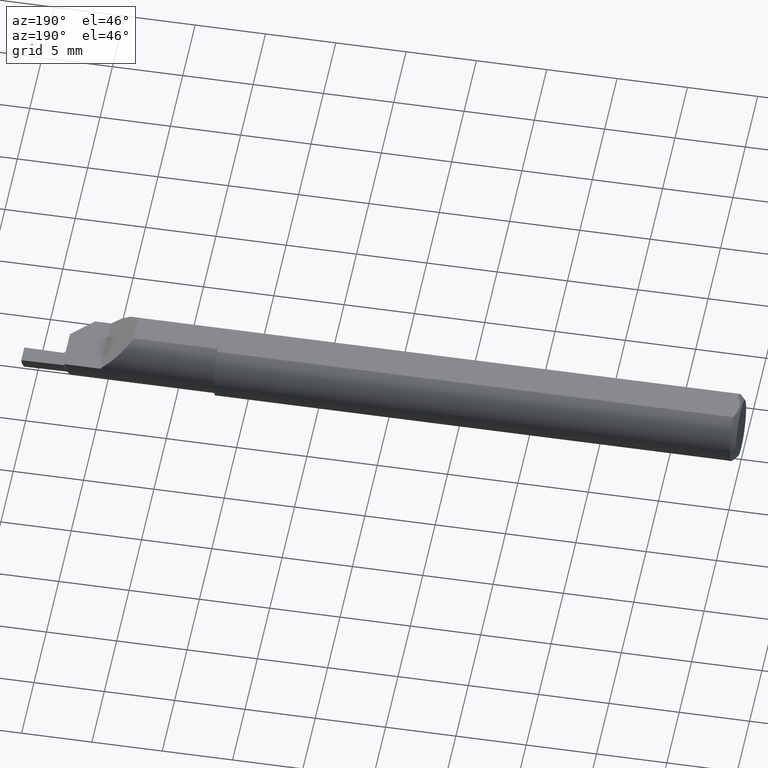
[diagram: clean part render]
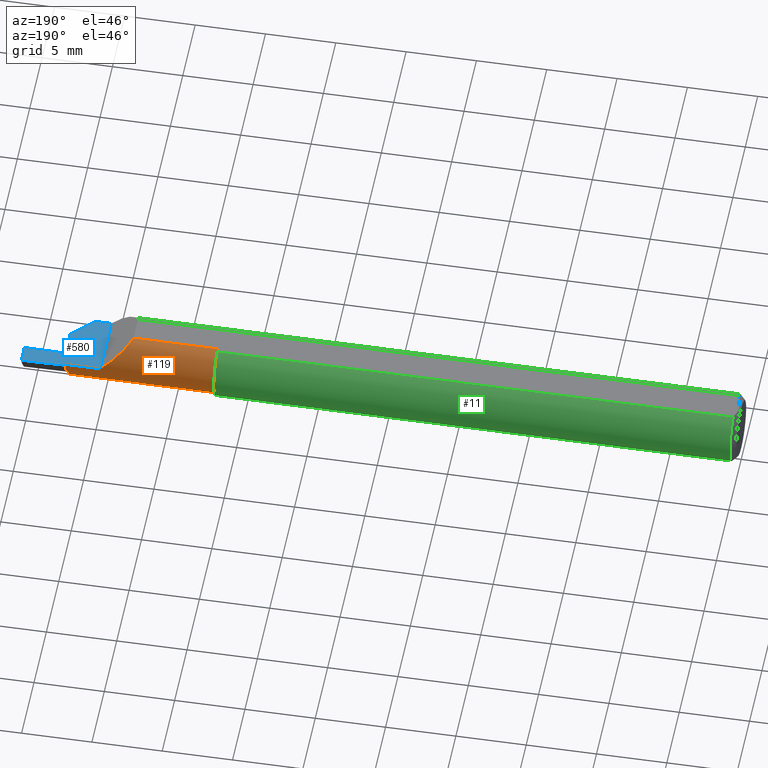
[diagram: same view with three faces highlighted in distinct colors, each labeled with its STEP entity id]
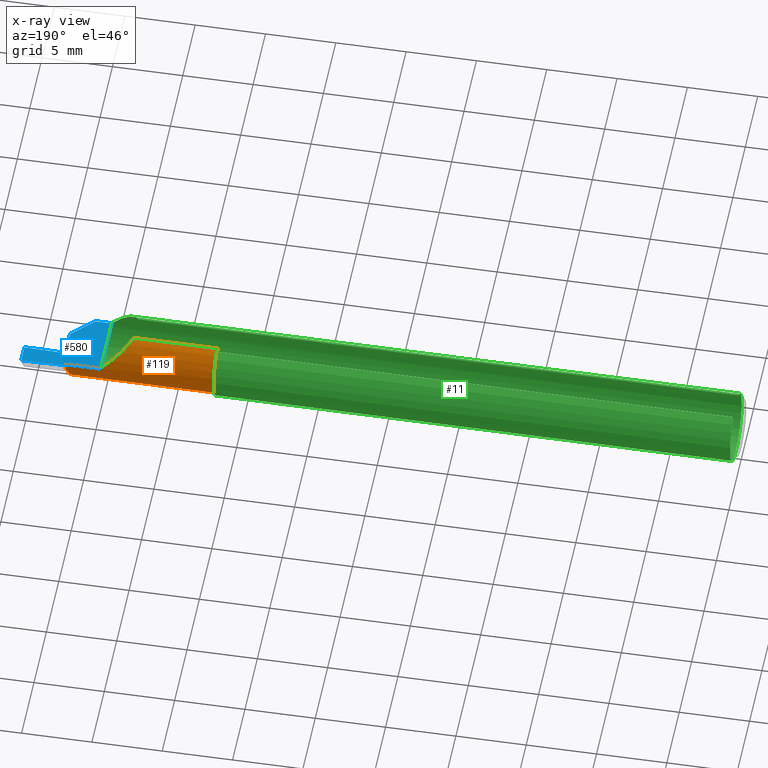
[diagram: x-ray of the same camera — body ghosted, the three highlighted faces saturated]
A machine part, auxiliary view with three faces highlighted in distinct colors.
The next image is the same camera in x-ray (body ghosted, the three faces saturated) — at least one of them is partly hidden behind the body in this view.
Their STEP definitions:

[orange] entity #119 — the highlighted cylindrical surface (edge-blend (fillet) strip) has radius 2.3749 mm, axis along (-1, -0, -0).
#15 = CIRCLE ( 'NONE', #449, 0.09349999999999999978 ) ;
#36 = ORIENTED_EDGE ( 'NONE', *, *, #242, .T. ) ;
#44 = EDGE_CURVE ( 'NONE', #395, #562, #765, .T. ) ;
#51 = CARTESIAN_POINT ( 'NONE',  ( 1.871630249067014473, 0.07571437546737692925, -0.03530500970831557117 ) ) ;
#66 = B_SPLINE_CURVE_WITH_KNOTS ( 'NONE', 3,
 ( #452, #634, #261, #435 ),
 .UNSPECIFIED., .F., .F.,
 ( 4, 4 ),
 ( 1.084202172485504434E-19, 4.492630260420551070E-05 ),
 .UNSPECIFIED. ) ;
#89 = LINE ( 'NONE', #287, #274 ) ;
#92 = VERTEX_POINT ( 'NONE', #542 ) ;
#93 = CARTESIAN_POINT ( 'NONE',  ( 1.870462673150747879, 0.06595898013322305797, -0.05324312250910651079 ) ) ;
#106 = DIRECTION ( 'NONE',  ( 0.000000000000000000, 0.000000000000000000, 1.000000000000000000 ) ) ;
#119 = ADVANCED_FACE ( 'NONE', ( #245 ), #194, .T. ) ;
#125 = CARTESIAN_POINT ( 'NONE',  ( 1.873500086923522323, 0.07823289136696819079, -0.02824476859656738573 ) ) ;
#129 = VERTEX_POINT ( 'NONE', #683 ) ;
#138 = CARTESIAN_POINT ( 'NONE',  ( 1.871724108065524694, -0.006308577734127043118, -0.09338716103925931433 ) ) ;
#142 = CIRCLE ( 'NONE', #386, 0.09350000000000002753 ) ;
#144 = EDGE_CURVE ( 'NONE', #129, #717, #142, .T. ) ;
#151 = VERTEX_POINT ( 'NONE', #572 ) ;
#170 = CARTESIAN_POINT ( 'NONE',  ( 1.660946387129862867, 0.08259923835978047468, 0.000000000000000000 ) ) ;
#174 = DIRECTION ( 'NONE',  ( 1.000000000000000000, 0.000000000000000000, 0.000000000000000000 ) ) ;
#182 = CARTESIAN_POINT ( 'NONE',  ( 1.870462673150747879, 0.06595898013322305797, -0.05324312250910651079 ) ) ;
#184 = CARTESIAN_POINT ( 'NONE',  ( 1.695999999999999286, 0.03097154424326387101, 0.08360000000000000764 ) ) ;
#185 = CARTESIAN_POINT ( 'NONE',  ( 1.875240176068755815, 0.07874946376246647062, -0.02655347595414943307 ) ) ;
#189 = CARTESIAN_POINT ( 'NONE',  ( 1.872373559742896321, 0.07704879319694681039, -0.03176034832322011808 ) ) ;
#190 = EDGE_CURVE ( 'NONE', #395, #717, #66, .T. ) ;
#194 = CYLINDRICAL_SURFACE ( 'NONE', #286, 0.09349999999999999978 ) ;
#196 = VECTOR ( 'NONE', #321, 39.37007874015748143 ) ;
#206 = DIRECTION ( 'NONE',  ( -1.000000000000000000, -0.000000000000000000, -0.000000000000000000 ) ) ;
#217 = VERTEX_POINT ( 'NONE', #138 ) ;
#239 = CARTESIAN_POINT ( 'NONE',  ( 1.874146761554601692, 0.07856775369816737520, -0.02716045060236167014 ) ) ;
#242 = EDGE_CURVE ( 'NONE', #671, #151, #380, .T. ) ;
#245 = FACE_OUTER_BOUND ( 'NONE', #308, .T. ) ;
#261 = CARTESIAN_POINT ( 'NONE',  ( 1.876413382923763251, 0.07871577950490736553, -0.02666700288578795208 ) ) ;
#268 = DIRECTION ( 'NONE',  ( -1.000000000000000000, -0.000000000000000000, -0.000000000000000000 ) ) ;
#274 = VECTOR ( 'NONE', #766, 39.37007874015748143 ) ;
#286 = AXIS2_PLACEMENT_3D ( 'NONE', #510, #268, #622 ) ;
#287 = CARTESIAN_POINT ( 'NONE',  ( 1.668499999999999872, -0.006308577734120256013, -0.09338716103925938372 ) ) ;
#308 = EDGE_LOOP ( 'NONE', ( #36, #687, #445, #538, #793, #701, #507, #641, #341 ) ) ;
#321 = DIRECTION ( 'NONE',  ( 1.000000000000000000, 0.000000000000000000, 0.000000000000000000 ) ) ;
#333 = CARTESIAN_POINT ( 'NONE',  ( 1.877000000000000002, -0.01090076164021952856, 0.000000000000000000 ) ) ;
#341 = ORIENTED_EDGE ( 'NONE', *, *, #712, .F. ) ;
#346 = EDGE_CURVE ( 'NONE', #217, #635, #89, .T. ) ;
#347 = CARTESIAN_POINT ( 'NONE',  ( 1.459999999999999964, -0.01090076164021952856, 0.000000000000000000 ) ) ;
#370 = CARTESIAN_POINT ( 'NONE',  ( 1.870578679361300622, 0.07143827578441207249, -0.04459544756415650263 ) ) ;
#380 = LINE ( 'NONE', #624, #196 ) ;
#386 = AXIS2_PLACEMENT_3D ( 'NONE', #333, #206, #569 ) ;
#395 = VERTEX_POINT ( 'NONE', #521 ) ;
#407 =( BOUNDED_CURVE ( )  B_SPLINE_CURVE ( 3, ( #93, #560, #761, #460 ),
 .UNSPECIFIED., .F., .F. ) 
 B_SPLINE_CURVE_WITH_KNOTS ( ( 4, 4 ),
 ( 0.6058307341752490194, 1.521662293291339285 ),
 .UNSPECIFIED. ) 
 CURVE ( )  GEOMETRIC_REPRESENTATION_ITEM ( )  RATIONAL_B_SPLINE_CURVE ( ( 1.000000000000000000, 0.9313172242408496171, 0.9313172242408496171, 1.000000000000000000 ) ) 
 REPRESENTATION_ITEM ( '' )  );
#417 = CARTESIAN_POINT ( 'NONE',  ( 1.873968698813473832, 0.07848625198081335408, -0.02742796125823298084 ) ) ;
#431 = CARTESIAN_POINT ( 'NONE',  ( 1.874913749179887512, 0.07875882808791800915, -0.02652185998459062263 ) ) ;
#435 = CARTESIAN_POINT ( 'NONE',  ( 1.877000000000000002, 0.07869889535216138821, -0.02672361253363190678 ) ) ;
#445 = ORIENTED_EDGE ( 'NONE', *, *, #556, .T. ) ;
#449 = AXIS2_PLACEMENT_3D ( 'NONE', #347, #589, #106 ) ;
#452 = CARTESIAN_POINT ( 'NONE',  ( 1.875240176068755815, 0.07874946376246647062, -0.02655347595414943307 ) ) ;
#460 = CARTESIAN_POINT ( 'NONE',  ( 1.871724108065524694, -0.006308577734127043118, -0.09338716103925931433 ) ) ;
#495 = CARTESIAN_POINT ( 'NONE',  ( 1.874602378891650378, 0.07870325883851046755, -0.02671001362459104328 ) ) ;
#507 = ORIENTED_EDGE ( 'NONE', *, *, #558, .T. ) ;
#510 = CARTESIAN_POINT ( 'NONE',  ( 1.660946387129862867, -0.01090076164021952856, 0.000000000000000000 ) ) ;
#511 =( BOUNDED_CURVE ( )  B_SPLINE_CURVE ( 3, ( #800, #664, #737, #184 ),
 .UNSPECIFIED., .F., .T. ) 
 B_SPLINE_CURVE_WITH_KNOTS ( ( 4, 4 ),
 ( 4.712388980384689674, 5.818846015254569792 ),
 .UNSPECIFIED. ) 
 CURVE ( )  GEOMETRIC_REPRESENTATION_ITEM ( )  RATIONAL_B_SPLINE_CURVE ( ( 1.000000000000000000, 0.9005550513955334901, 0.9005550513955334901, 1.000000000000000000 ) ) 
 REPRESENTATION_ITEM ( '' )  );
#519 = EDGE_CURVE ( 'NONE', #92, #151, #511, .T. ) ;
#521 = CARTESIAN_POINT ( 'NONE',  ( 1.875240176068755815, 0.07874946376246647062, -0.02655347595414943307 ) ) ;
#538 = ORIENTED_EDGE ( 'NONE', *, *, #144, .T. ) ;
#542 = CARTESIAN_POINT ( 'NONE',  ( 1.779599999999998516, 0.08259923835978043305, 0.000000000000000000 ) ) ;
#554 = VECTOR ( 'NONE', #174, 39.37007874015748143 ) ;
#556 = EDGE_CURVE ( 'NONE', #92, #129, #727, .T. ) ;
#557 = CARTESIAN_POINT ( 'NONE',  ( 1.870462673150747879, 0.06595898013322305797, -0.05324312250910651079 ) ) ;
#558 = EDGE_CURVE ( 'NONE', #562, #217, #407, .T. ) ;
#560 = CARTESIAN_POINT ( 'NONE',  ( 1.870756774177017023, 0.04910994362264489710, -0.07756574925048233260 ) ) ;
#562 = VERTEX_POINT ( 'NONE', #557 ) ;
#569 = DIRECTION ( 'NONE',  ( 0.000000000000000000, 0.000000000000000000, 1.000000000000000000 ) ) ;
#572 = CARTESIAN_POINT ( 'NONE',  ( 1.695999999999999286, 0.03097154424326387101, 0.08360000000000000764 ) ) ;
#589 = DIRECTION ( 'NONE',  ( -1.000000000000000000, -0.000000000000000000, -0.000000000000000000 ) ) ;
#611 = CARTESIAN_POINT ( 'NONE',  ( 1.870412094521900270, 0.06885662783759301242, -0.04906018875517063893 ) ) ;
#622 = DIRECTION ( 'NONE',  ( 0.000000000000000000, 0.000000000000000000, 1.000000000000000000 ) ) ;
#624 = CARTESIAN_POINT ( 'NONE',  ( 1.660946387129862867, 0.03097154424326387101, 0.08360000000000000764 ) ) ;
#634 = CARTESIAN_POINT ( 'NONE',  ( 1.875826774921705242, 0.07873263579039797844, -0.02661029079419618970 ) ) ;
#635 = VERTEX_POINT ( 'NONE', #768 ) ;
#641 = ORIENTED_EDGE ( 'NONE', *, *, #346, .T. ) ;
#660 = CARTESIAN_POINT ( 'NONE',  ( 1.873272395383936750, 0.07804906452289001040, -0.02881933657939982768 ) ) ;
#664 = CARTESIAN_POINT ( 'NONE',  ( 1.743231059775836922, 0.08259923835978047468, 0.03636894022416205935 ) ) ;
#671 = VERTEX_POINT ( 'NONE', #709 ) ;
#678 = CARTESIAN_POINT ( 'NONE',  ( 1.871311898221041270, 0.07472147366469066021, -0.03765153487251439446 ) ) ;
#683 = CARTESIAN_POINT ( 'NONE',  ( 1.877000000000000002, 0.08259923835978048856, 0.000000000000000000 ) ) ;
#687 = ORIENTED_EDGE ( 'NONE', *, *, #519, .F. ) ;
#701 = ORIENTED_EDGE ( 'NONE', *, *, #44, .T. ) ;
#709 = CARTESIAN_POINT ( 'NONE',  ( 1.459999999999999964, 0.03097154424326387101, 0.08360000000000000764 ) ) ;
#712 = EDGE_CURVE ( 'NONE', #671, #635, #15, .T. ) ;
#717 = VERTEX_POINT ( 'NONE', #730 ) ;
#727 = LINE ( 'NONE', #170, #554 ) ;
#730 = CARTESIAN_POINT ( 'NONE',  ( 1.877000000000000002, 0.07869889535216138821, -0.02672361253363190678 ) ) ;
#732 = CARTESIAN_POINT ( 'NONE',  ( 1.872663740311422131, 0.07747081412839976200, -0.03056497239435548505 ) ) ;
#737 = CARTESIAN_POINT ( 'NONE',  ( 1.712287180638761397, 0.06348965550251473022, 0.06731281936123807708 ) ) ;
#761 = CARTESIAN_POINT ( 'NONE',  ( 1.871208261912862048, 0.02324422855931691442, -0.09193394284598396804 ) ) ;
#765 = B_SPLINE_CURVE_WITH_KNOTS ( 'NONE', 3,
 ( #185, #431, #495, #239, #417, #125, #660, #732, #189, #51, #678, #370, #611, #182 ),
 .UNSPECIFIED., .F., .F.,
 ( 4, 2, 2, 2, 2, 2, 4 ),
 ( 7.446325978732054336E-05, 9.944678383452174020E-05, 0.0001244303078817229370, 0.0001743973559761253307, 0.0002743314521649367317, 0.0004741996445425596422, 0.0008739360292978057883 ),
 .UNSPECIFIED. ) ;
#766 = DIRECTION ( 'NONE',  ( -1.000000000000000000, -0.000000000000000000, -0.000000000000000000 ) ) ;
#768 = CARTESIAN_POINT ( 'NONE',  ( 1.459999999999999964, -0.006308577734120247339, -0.09338716103925938372 ) ) ;
#793 = ORIENTED_EDGE ( 'NONE', *, *, #190, .F. ) ;
#800 = CARTESIAN_POINT ( 'NONE',  ( 1.779599999999998516, 0.08259923835978043305, 0.000000000000000000 ) ) ;

[blue] entity #580 — the highlighted planar face has unit normal (0, 0, -1).
#3 = CARTESIAN_POINT ( 'NONE',  ( 2.130067462402516210, 0.09086957436106303521, 0.000000000000000000 ) ) ;
#22 = DIRECTION ( 'NONE',  ( -1.000000000000000000, 0.000000000000000000, -0.000000000000000000 ) ) ;
#45 = CARTESIAN_POINT ( 'NONE',  ( 0.000000000000000000, -0.09360000000000001652, 0.000000000000000000 ) ) ;
#48 = CARTESIAN_POINT ( 'NONE',  ( 1.877000000000000002, 0.08559923835978046347, 0.000000000000000000 ) ) ;
#56 = ORIENTED_EDGE ( 'NONE', *, *, #556, .F. ) ;
#71 = CARTESIAN_POINT ( 'NONE',  ( 2.000000000000000000, -0.1936000000000000221, 0.000000000000000000 ) ) ;
#82 = VERTEX_POINT ( 'NONE', #666 ) ;
#86 = LINE ( 'NONE', #327, #525 ) ;
#92 = VERTEX_POINT ( 'NONE', #542 ) ;
#99 = CARTESIAN_POINT ( 'NONE',  ( 1.752499999999999503, -0.1660999999999994980, 0.000000000000000000 ) ) ;
#129 = VERTEX_POINT ( 'NONE', #683 ) ;
#131 = EDGE_CURVE ( 'NONE', #92, #623, #86, .T. ) ;
#134 = DIRECTION ( 'NONE',  ( 0.000000000000000000, 0.000000000000000000, -1.000000000000000000 ) ) ;
#139 = EDGE_LOOP ( 'NONE', ( #56, #148, #183, #750, #409, #743, #157, #259, #698, #653, #240 ) ) ;
#143 = DIRECTION ( 'NONE',  ( 0.000000000000000000, -1.000000000000000000, 0.000000000000000000 ) ) ;
#145 = VERTEX_POINT ( 'NONE', #387 ) ;
#148 = ORIENTED_EDGE ( 'NONE', *, *, #131, .T. ) ;
#156 = AXIS2_PLACEMENT_3D ( 'NONE', #48, #658, #353 ) ;
#157 = ORIENTED_EDGE ( 'NONE', *, *, #688, .T. ) ;
#170 = CARTESIAN_POINT ( 'NONE',  ( 1.660946387129862867, 0.08259923835978047468, 0.000000000000000000 ) ) ;
#174 = DIRECTION ( 'NONE',  ( 1.000000000000000000, 0.000000000000000000, 0.000000000000000000 ) ) ;
#181 = DIRECTION ( 'NONE',  ( 0.000000000000000000, 0.000000000000000000, -1.000000000000000000 ) ) ;
#183 = ORIENTED_EDGE ( 'NONE', *, *, #413, .F. ) ;
#219 = VECTOR ( 'NONE', #549, 39.37007874015748143 ) ;
#222 = DIRECTION ( 'NONE',  ( 0.9998476951563912696, -0.01745240643727494559, 0.000000000000000000 ) ) ;
#240 = ORIENTED_EDGE ( 'NONE', *, *, #757, .F. ) ;
#252 = EDGE_CURVE ( 'NONE', #705, #338, #631, .T. ) ;
#259 = ORIENTED_EDGE ( 'NONE', *, *, #607, .T. ) ;
#263 = DIRECTION ( 'NONE',  ( 0.000000000000000000, 1.000000000000000000, 0.000000000000000000 ) ) ;
#281 = CARTESIAN_POINT ( 'NONE',  ( 1.779599999999998516, -0.09360000000000001652, 0.000000000000000000 ) ) ;
#293 = CARTESIAN_POINT ( 'NONE',  ( 1.893139705841341058, 0.04046449173256733839, 5.335640612625514099E-18 ) ) ;
#313 = VECTOR ( 'NONE', #263, 39.37007874015748143 ) ;
#327 = CARTESIAN_POINT ( 'NONE',  ( 1.779599999999998516, -0.1936000000000000221, 0.000000000000000000 ) ) ;
#330 = EDGE_CURVE ( 'NONE', #505, #82, #516, .T. ) ;
#338 = VERTEX_POINT ( 'NONE', #343 ) ;
#339 = PLANE ( 'NONE',  #526 ) ;
#343 = CARTESIAN_POINT ( 'NONE',  ( 1.879999999999999893, 0.08650463056839603759, 0.000000000000000000 ) ) ;
#348 = VECTOR ( 'NONE', #222, 39.37007874015748854 ) ;
#353 = DIRECTION ( 'NONE',  ( -1.000000000000000000, 0.000000000000000000, 0.000000000000000000 ) ) ;
#360 = LINE ( 'NONE', #414, #348 ) ;
#361 = DIRECTION ( 'NONE',  ( 0.9998476951563914916, 0.01745240643726934937, 0.000000000000000000 ) ) ;
#366 = CARTESIAN_POINT ( 'NONE',  ( 1.893000000000000016, 0.03246571168274756114, 0.000000000000000000 ) ) ;
#369 = LINE ( 'NONE', #3, #375 ) ;
#375 = VECTOR ( 'NONE', #361, 39.37007874015748854 ) ;
#387 = CARTESIAN_POINT ( 'NONE',  ( 1.885000000000000009, 0.03246571168274756114, 0.000000000000000000 ) ) ;
#400 = VERTEX_POINT ( 'NONE', #644 ) ;
#401 = CARTESIAN_POINT ( 'NONE',  ( 1.779999999999999805, -0.1936000000000000221, 0.000000000000000000 ) ) ;
#409 = ORIENTED_EDGE ( 'NONE', *, *, #787, .T. ) ;
#413 = EDGE_CURVE ( 'NONE', #505, #623, #651, .T. ) ;
#414 = CARTESIAN_POINT ( 'NONE',  ( 1.784118827304627564, 0.04236745824595606474, 0.000000000000000000 ) ) ;
#441 = DIRECTION ( 'NONE',  ( 0.000000000000000000, 1.000000000000000000, 0.000000000000000000 ) ) ;
#455 = LINE ( 'NONE', #71, #738 ) ;
#461 = EDGE_CURVE ( 'NONE', #338, #599, #369, .T. ) ;
#472 = EDGE_CURVE ( 'NONE', #145, #763, #577, .T. ) ;
#505 = VERTEX_POINT ( 'NONE', #547 ) ;
#513 = DIRECTION ( 'NONE',  ( -1.000000000000000000, -0.000000000000000000, -0.000000000000000000 ) ) ;
#516 = LINE ( 'NONE', #99, #619 ) ;
#525 = VECTOR ( 'NONE', #143, 39.37007874015748143 ) ;
#526 = AXIS2_PLACEMENT_3D ( 'NONE', #401, #134, #22 ) ;
#533 = DIRECTION ( 'NONE',  ( 0.7071067811865500152, 0.7071067811865447972, 0.000000000000000000 ) ) ;
#539 = CARTESIAN_POINT ( 'NONE',  ( 1.879999999999999893, 0.08559923835978046347, 0.000000000000000000 ) ) ;
#542 = CARTESIAN_POINT ( 'NONE',  ( 1.779599999999998516, 0.08259923835978043305, 0.000000000000000000 ) ) ;
#547 = CARTESIAN_POINT ( 'NONE',  ( 1.824999999999999512, -0.09360000000000003040, 0.000000000000000000 ) ) ;
#549 = DIRECTION ( 'NONE',  ( 0.000000000000000000, 1.000000000000000000, 0.000000000000000000 ) ) ;
#554 = VECTOR ( 'NONE', #174, 39.37007874015748143 ) ;
#556 = EDGE_CURVE ( 'NONE', #92, #129, #727, .T. ) ;
#563 = CARTESIAN_POINT ( 'NONE',  ( 1.879999999999999893, -0.1936000000000000221, 0.000000000000000000 ) ) ;
#571 = FACE_OUTER_BOUND ( 'NONE', #139, .T. ) ;
#577 = CIRCLE ( 'NONE', #684, 0.008000000000000024453 ) ;
#580 = ADVANCED_FACE ( 'NONE', ( #571 ), #339, .F. ) ;
#599 = VERTEX_POINT ( 'NONE', #745 ) ;
#607 = EDGE_CURVE ( 'NONE', #400, #599, #455, .T. ) ;
#613 = CARTESIAN_POINT ( 'NONE',  ( 1.885000000000000009, -0.1936000000000000221, 0.000000000000000000 ) ) ;
#619 = VECTOR ( 'NONE', #533, 39.37007874015748854 ) ;
#623 = VERTEX_POINT ( 'NONE', #281 ) ;
#631 = LINE ( 'NONE', #563, #313 ) ;
#644 = CARTESIAN_POINT ( 'NONE',  ( 2.000000000000000000, 0.03859923835978044254, 0.000000000000000000 ) ) ;
#651 = LINE ( 'NONE', #45, #760 ) ;
#653 = ORIENTED_EDGE ( 'NONE', *, *, #252, .F. ) ;
#658 = DIRECTION ( 'NONE',  ( -0.000000000000000000, -0.000000000000000000, 1.000000000000000000 ) ) ;
#666 = CARTESIAN_POINT ( 'NONE',  ( 1.885000000000000009, -0.03360000000000001180, 0.000000000000000000 ) ) ;
#668 = LINE ( 'NONE', #613, #219 ) ;
#683 = CARTESIAN_POINT ( 'NONE',  ( 1.877000000000000002, 0.08259923835978048856, 0.000000000000000000 ) ) ;
#684 = AXIS2_PLACEMENT_3D ( 'NONE', #366, #181, #785 ) ;
#688 = EDGE_CURVE ( 'NONE', #763, #400, #360, .T. ) ;
#698 = ORIENTED_EDGE ( 'NONE', *, *, #461, .F. ) ;
#705 = VERTEX_POINT ( 'NONE', #539 ) ;
#727 = LINE ( 'NONE', #170, #554 ) ;
#734 = CIRCLE ( 'NONE', #156, 0.002999999999999940648 ) ;
#738 = VECTOR ( 'NONE', #441, 39.37007874015748143 ) ;
#743 = ORIENTED_EDGE ( 'NONE', *, *, #472, .T. ) ;
#745 = CARTESIAN_POINT ( 'NONE',  ( 2.000000000000000000, 0.08859923835978049389, 2.646477743862255178E-16 ) ) ;
#750 = ORIENTED_EDGE ( 'NONE', *, *, #330, .T. ) ;
#757 = EDGE_CURVE ( 'NONE', #129, #705, #734, .T. ) ;
#760 = VECTOR ( 'NONE', #513, 39.37007874015748143 ) ;
#763 = VERTEX_POINT ( 'NONE', #293 ) ;
#785 = DIRECTION ( 'NONE',  ( -1.000000000000000000, 0.000000000000000000, 0.000000000000000000 ) ) ;
#787 = EDGE_CURVE ( 'NONE', #82, #145, #668, .T. ) ;

[green] entity #11 — the highlighted cylindrical surface (edge-blend (fillet) strip) has radius 2.3774 mm, axis along (-1, -0, -0).
#4 = CARTESIAN_POINT ( 'NONE',  ( 1.842381308374117843, -0.07621869162588180979, -0.06437630778575331725 ) ) ;
#5 = ORIENTED_EDGE ( 'NONE', *, *, #488, .T. ) ;
#11 = ADVANCED_FACE ( 'NONE', ( #420 ), #428, .T. ) ;
#12 = EDGE_CURVE ( 'NONE', #623, #783, #75, .T. ) ;
#21 = ORIENTED_EDGE ( 'NONE', *, *, #12, .T. ) ;
#32 = EDGE_CURVE ( 'NONE', #425, #505, #685, .T. ) ;
#45 = CARTESIAN_POINT ( 'NONE',  ( 0.000000000000000000, -0.09360000000000001652, 0.000000000000000000 ) ) ;
#53 = DIRECTION ( 'NONE',  ( 1.000000000000000000, 0.000000000000000000, 0.000000000000000000 ) ) ;
#59 = CARTESIAN_POINT ( 'NONE',  ( 0.000000000000000000, 0.000000000000000000, 0.000000000000000000 ) ) ;
#75 =( BOUNDED_CURVE ( )  B_SPLINE_CURVE ( 3, ( #603, #176, #545, #553 ),
 .UNSPECIFIED., .F., .F. ) 
 B_SPLINE_CURVE_WITH_KNOTS ( ( 4, 4 ),
 ( 4.712388980384689674, 5.816717474156034129 ),
 .UNSPECIFIED. ) 
 CURVE ( )  GEOMETRIC_REPRESENTATION_ITEM ( )  RATIONAL_B_SPLINE_CURVE ( ( 1.000000000000000000, 0.9009275347591065852, 0.9009275347591065852, 1.000000000000000000 ) ) 
 REPRESENTATION_ITEM ( '' )  );
#81 = DIRECTION ( 'NONE',  ( 1.000000000000000000, 0.000000000000000000, 0.000000000000000000 ) ) ;
#89 = LINE ( 'NONE', #287, #274 ) ;
#118 = EDGE_CURVE ( 'NONE', #320, #422, #735, .T. ) ;
#124 = LINE ( 'NONE', #551, #133 ) ;
#133 = VECTOR ( 'NONE', #53, 39.37007874015748143 ) ;
#138 = CARTESIAN_POINT ( 'NONE',  ( 1.871724108065524694, -0.006308577734127043118, -0.09338716103925931433 ) ) ;
#141 = ORIENTED_EDGE ( 'NONE', *, *, #118, .T. ) ;
#176 = CARTESIAN_POINT ( 'NONE',  ( 1.743269953535348638, -0.09360000000000001652, 0.03633004646465035764 ) ) ;
#180 = EDGE_CURVE ( 'NONE', #217, #425, #799, .T. ) ;
#192 = VERTEX_POINT ( 'NONE', #200 ) ;
#199 = EDGE_LOOP ( 'NONE', ( #429, #392, #374, #225, #494, #21, #5, #676, #141, #326 ) ) ;
#200 = CARTESIAN_POINT ( 'NONE',  ( 1.459999999999999964, 0.04209513035969836975, 0.08360000000000000764 ) ) ;
#203 = CARTESIAN_POINT ( 'NONE',  ( 1.871724108065524694, -0.006308577734127043118, -0.09338716103925931433 ) ) ;
#211 = EDGE_CURVE ( 'NONE', #635, #192, #423, .T. ) ;
#217 = VERTEX_POINT ( 'NONE', #138 ) ;
#225 = ORIENTED_EDGE ( 'NONE', *, *, #32, .T. ) ;
#226 = CARTESIAN_POINT ( 'NONE',  ( 0.01499999999999997689, 0.000000000000000000, 0.000000000000000000 ) ) ;
#235 = AXIS2_PLACEMENT_3D ( 'NONE', #305, #797, #367 ) ;
#243 = CARTESIAN_POINT ( 'NONE',  ( 1.872420065192024641, -0.04617993480797533828, -0.08141482433274142838 ) ) ;
#249 = DIRECTION ( 'NONE',  ( -1.000000000000000000, -0.000000000000000000, -0.000000000000000000 ) ) ;
#254 = CARTESIAN_POINT ( 'NONE',  ( 1.824999999999999289, -0.09360000000000003040, -0.03453459073577250238 ) ) ;
#274 = VECTOR ( 'NONE', #766, 39.37007874015748143 ) ;
#275 = CARTESIAN_POINT ( 'NONE',  ( 1.872420065192024641, -0.04617993480797533828, -0.08141482433274142838 ) ) ;
#281 = CARTESIAN_POINT ( 'NONE',  ( 1.779599999999998516, -0.09360000000000001652, 0.000000000000000000 ) ) ;
#285 = CIRCLE ( 'NONE', #770, 0.09360000000000001652 ) ;
#287 = CARTESIAN_POINT ( 'NONE',  ( 1.668499999999999872, -0.006308577734120256013, -0.09338716103925938372 ) ) ;
#294 = CARTESIAN_POINT ( 'NONE',  ( 0.01499999999999997689, -0.04209513035969836975, 0.08360000000000000764 ) ) ;
#298 = CARTESIAN_POINT ( 'NONE',  ( 0.01499999999999997689, 0.04209513035969836975, 0.08360000000000000764 ) ) ;
#305 = CARTESIAN_POINT ( 'NONE',  ( 0.01499999999999997689, 0.000000000000000000, 0.000000000000000000 ) ) ;
#320 = VERTEX_POINT ( 'NONE', #394 ) ;
#326 = ORIENTED_EDGE ( 'NONE', *, *, #470, .T. ) ;
#337 = VECTOR ( 'NONE', #677, 39.37007874015748143 ) ;
#346 = EDGE_CURVE ( 'NONE', #217, #635, #89, .T. ) ;
#367 = DIRECTION ( 'NONE',  ( 0.000000000000000000, 0.000000000000000000, -1.000000000000000000 ) ) ;
#374 = ORIENTED_EDGE ( 'NONE', *, *, #180, .T. ) ;
#392 = ORIENTED_EDGE ( 'NONE', *, *, #346, .F. ) ;
#394 = CARTESIAN_POINT ( 'NONE',  ( 0.01499999999999997689, 0.000000000000000000, -0.09360000000000003040 ) ) ;
#413 = EDGE_CURVE ( 'NONE', #505, #623, #651, .T. ) ;
#420 = FACE_OUTER_BOUND ( 'NONE', #199, .T. ) ;
#421 = LINE ( 'NONE', #659, #337 ) ;
#422 = VERTEX_POINT ( 'NONE', #298 ) ;
#423 = CIRCLE ( 'NONE', #552, 0.09360000000000001652 ) ;
#425 = VERTEX_POINT ( 'NONE', #243 ) ;
#428 = CYLINDRICAL_SURFACE ( 'NONE', #617, 0.09360000000000001652 ) ;
#429 = ORIENTED_EDGE ( 'NONE', *, *, #211, .F. ) ;
#456 = VERTEX_POINT ( 'NONE', #294 ) ;
#470 = EDGE_CURVE ( 'NONE', #422, #192, #124, .T. ) ;
#477 = DIRECTION ( 'NONE',  ( 1.000000000000000000, 0.000000000000000000, 0.000000000000000000 ) ) ;
#488 = EDGE_CURVE ( 'NONE', #783, #456, #421, .T. ) ;
#493 = CARTESIAN_POINT ( 'NONE',  ( 1.872420065192024641, -0.04617993480797533828, -0.08141482433274142838 ) ) ;
#494 = ORIENTED_EDGE ( 'NONE', *, *, #413, .T. ) ;
#505 = VERTEX_POINT ( 'NONE', #547 ) ;
#513 = DIRECTION ( 'NONE',  ( -1.000000000000000000, -0.000000000000000000, -0.000000000000000000 ) ) ;
#545 = CARTESIAN_POINT ( 'NONE',  ( 1.712338867969052103, -0.07454376160376645355, 0.06726113203094705173 ) ) ;
#547 = CARTESIAN_POINT ( 'NONE',  ( 1.824999999999999512, -0.09360000000000003040, 0.000000000000000000 ) ) ;
#551 = CARTESIAN_POINT ( 'NONE',  ( 0.000000000000000000, 0.04209513035969836975, 0.08360000000000000764 ) ) ;
#552 = AXIS2_PLACEMENT_3D ( 'NONE', #686, #81, #749 ) ;
#553 = CARTESIAN_POINT ( 'NONE',  ( 1.695999999999999286, -0.04209513035969836975, 0.08360000000000000764 ) ) ;
#561 = CARTESIAN_POINT ( 'NONE',  ( 1.872205802733059254, -0.03390484675493083550, -0.08837747236026764763 ) ) ;
#596 = CARTESIAN_POINT ( 'NONE',  ( 1.695999999999999286, -0.04209513035969836975, 0.08360000000000000764 ) ) ;
#603 = CARTESIAN_POINT ( 'NONE',  ( 1.779599999999998516, -0.09360000000000001652, 0.000000000000000000 ) ) ;
#609 = DIRECTION ( 'NONE',  ( 0.000000000000000000, 0.000000000000000000, 1.000000000000000000 ) ) ;
#617 = AXIS2_PLACEMENT_3D ( 'NONE', #59, #249, #609 ) ;
#623 = VERTEX_POINT ( 'NONE', #281 ) ;
#635 = VERTEX_POINT ( 'NONE', #768 ) ;
#651 = LINE ( 'NONE', #45, #760 ) ;
#659 = CARTESIAN_POINT ( 'NONE',  ( 0.000000000000000000, -0.04209513035969836975, 0.08360000000000000764 ) ) ;
#676 = ORIENTED_EDGE ( 'NONE', *, *, #724, .T. ) ;
#677 = DIRECTION ( 'NONE',  ( -1.000000000000000000, -0.000000000000000000, -0.000000000000000000 ) ) ;
#685 =( BOUNDED_CURVE ( )  B_SPLINE_CURVE ( 3, ( #493, #4, #254, #739 ),
 .UNSPECIFIED., .F., .F. ) 
 B_SPLINE_CURVE_WITH_KNOTS ( ( 4, 4 ),
 ( 5.228355037880596079, 6.283185307179586232 ),
 .UNSPECIFIED. ) 
 CURVE ( )  GEOMETRIC_REPRESENTATION_ITEM ( )  RATIONAL_B_SPLINE_CURVE ( ( 1.000000000000000000, 0.9094072814954845541, 0.9094072814954845541, 1.000000000000000000 ) ) 
 REPRESENTATION_ITEM ( '' )  );
#686 = CARTESIAN_POINT ( 'NONE',  ( 1.459999999999999964, 0.000000000000000000, 0.000000000000000000 ) ) ;
#690 = CARTESIAN_POINT ( 'NONE',  ( 1.871969878573832791, -0.02038876072507336476, -0.09243600321498610106 ) ) ;
#724 = EDGE_CURVE ( 'NONE', #456, #320, #285, .T. ) ;
#725 = DIRECTION ( 'NONE',  ( 0.000000000000000000, 0.000000000000000000, -1.000000000000000000 ) ) ;
#735 = CIRCLE ( 'NONE', #235, 0.09360000000000001652 ) ;
#739 = CARTESIAN_POINT ( 'NONE',  ( 1.824999999999999512, -0.09360000000000003040, 0.000000000000000000 ) ) ;
#749 = DIRECTION ( 'NONE',  ( 0.000000000000000000, 0.000000000000000000, -1.000000000000000000 ) ) ;
#760 = VECTOR ( 'NONE', #513, 39.37007874015748143 ) ;
#766 = DIRECTION ( 'NONE',  ( -1.000000000000000000, -0.000000000000000000, -0.000000000000000000 ) ) ;
#768 = CARTESIAN_POINT ( 'NONE',  ( 1.459999999999999964, -0.006308577734120247339, -0.09338716103925938372 ) ) ;
#770 = AXIS2_PLACEMENT_3D ( 'NONE', #226, #477, #725 ) ;
#783 = VERTEX_POINT ( 'NONE', #596 ) ;
#797 = DIRECTION ( 'NONE',  ( 1.000000000000000000, 0.000000000000000000, 0.000000000000000000 ) ) ;
#799 =( BOUNDED_CURVE ( )  B_SPLINE_CURVE ( 3, ( #203, #690, #561, #275 ),
 .UNSPECIFIED., .F., .T. ) 
 B_SPLINE_CURVE_WITH_KNOTS ( ( 4, 4 ),
 ( 1.638246794983706289, 2.086762384290802075 ),
 .UNSPECIFIED. ) 
 CURVE ( )  GEOMETRIC_REPRESENTATION_ITEM ( )  RATIONAL_B_SPLINE_CURVE ( ( 1.000000000000000000, 0.9833062861978236757, 0.9833062861978236757, 1.000000000000000000 ) ) 
 REPRESENTATION_ITEM ( '' )  );